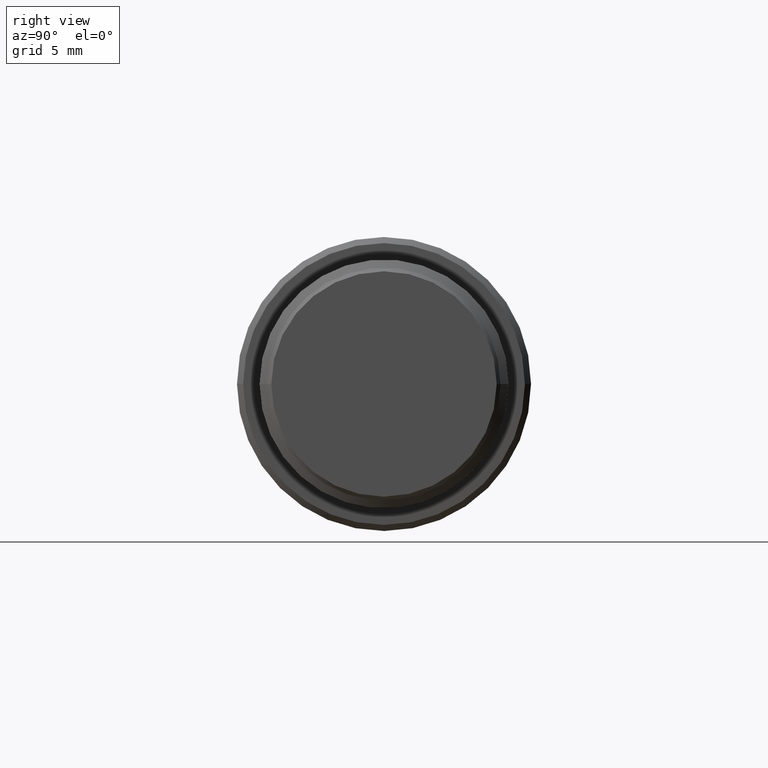
[diagram: clean part render]
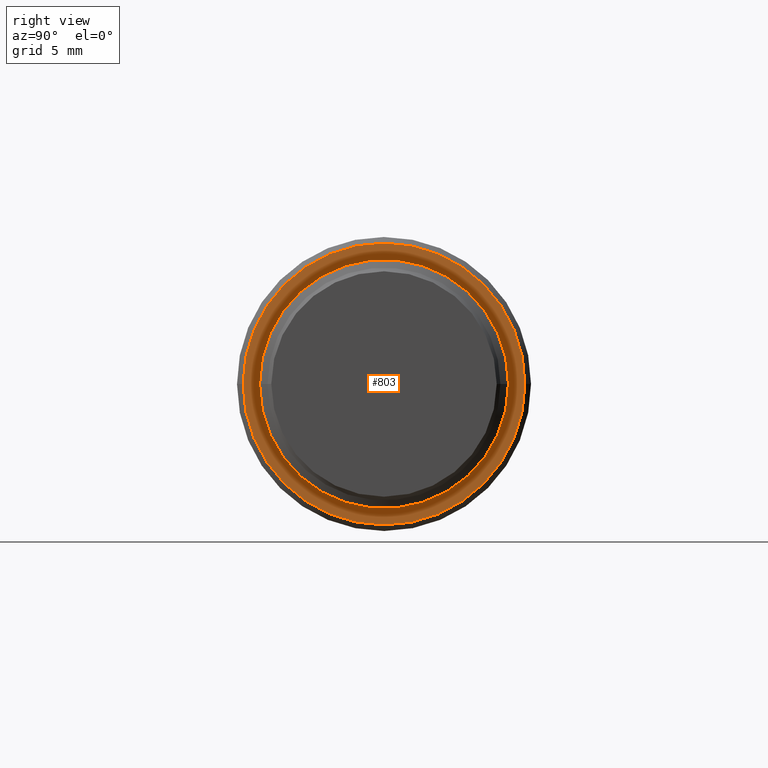
[diagram: same view with one face highlighted and labeled with its STEP entity id]
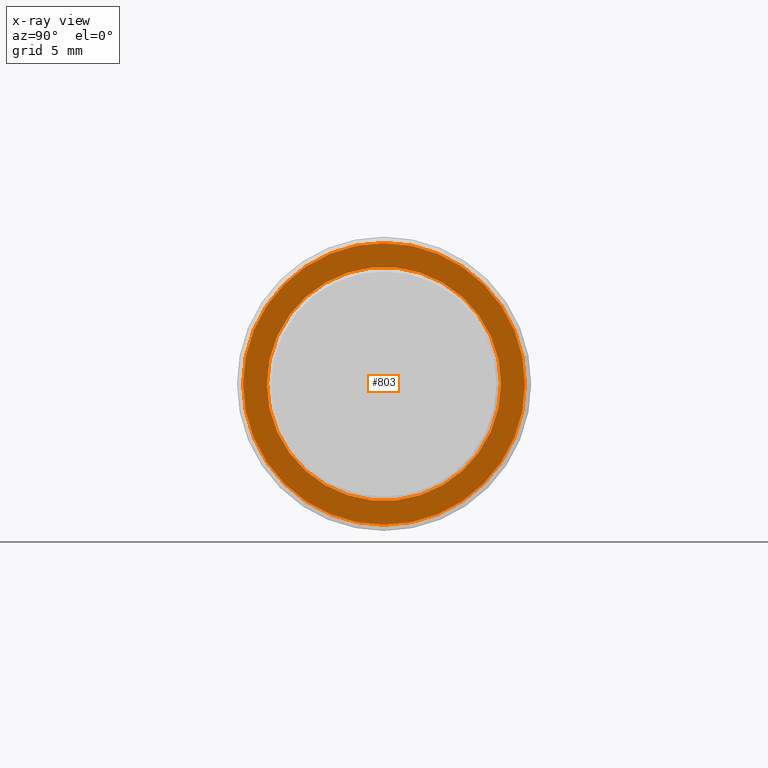
[diagram: x-ray of the same camera — body ghosted, the highlighted face saturated]
A machine part, right view. The second image highlights one B-rep face of the part: STEP entity #803.
The next image is the same camera in x-ray: the body ghosted, the highlighted face saturated — about 0% of this face is hidden behind the body in this view.
In plain terms, the highlighted planar face has unit normal (-1, 0, 0).
Its self-contained STEP definition (entity closure, byte-faithful):
#12 = EDGE_CURVE ( 'NONE', #1266, #399, #733, .T. ) ;
#100 = DIRECTION ( 'NONE',  ( 0.000000000000000000, 1.000000000000000000, 0.000000000000000000 ) ) ;
#183 = CIRCLE ( 'NONE', #898, 9.549999999999998934 ) ;
#192 = CARTESIAN_POINT ( 'NONE',  ( 45.00000000000000000, 0.000000000000000000, 0.000000000000000000 ) ) ;
#282 = CARTESIAN_POINT ( 'NONE',  ( 45.00000000000000000, -9.549999999999998934, 0.000000000000000000 ) ) ;
#307 = CARTESIAN_POINT ( 'NONE',  ( 45.00000000000000000, 10.52500000000000036, 0.000000000000000000 ) ) ;
#338 = CARTESIAN_POINT ( 'NONE',  ( 45.00000000000000000, -11.50000000000000000, -1.408343819019459923E-15 ) ) ;
#343 = AXIS2_PLACEMENT_3D ( 'NONE', #680, #602, #1202 ) ;
#352 = CARTESIAN_POINT ( 'NONE',  ( 45.00000000000000000, 0.000000000000000000, 0.000000000000000000 ) ) ;
#381 = DIRECTION ( 'NONE',  ( 0.000000000000000000, 1.000000000000000000, 0.000000000000000000 ) ) ;
#399 = VERTEX_POINT ( 'NONE', #282 ) ;
#408 = DIRECTION ( 'NONE',  ( 1.000000000000000000, 0.000000000000000000, 0.000000000000000000 ) ) ;
#414 = EDGE_CURVE ( 'NONE', #925, #1161, #470, .T. ) ;
#457 = DIRECTION ( 'NONE',  ( 1.000000000000000000, 0.000000000000000000, 0.000000000000000000 ) ) ;
#470 = CIRCLE ( 'NONE', #575, 11.50000000000000000 ) ;
#473 = AXIS2_PLACEMENT_3D ( 'NONE', #192, #651, #381 ) ;
#507 = FACE_OUTER_BOUND ( 'NONE', #779, .T. ) ;
#546 = EDGE_CURVE ( 'NONE', #399, #1266, #183, .T. ) ;
#575 = AXIS2_PLACEMENT_3D ( 'NONE', #352, #457, #1135 ) ;
#599 = FACE_BOUND ( 'NONE', #862, .T. ) ;
#602 = DIRECTION ( 'NONE',  ( 1.000000000000000000, 0.000000000000000000, 0.000000000000000000 ) ) ;
#610 = CARTESIAN_POINT ( 'NONE',  ( 45.00000000000000000, 9.549999999999998934, -1.169537693185719994E-15 ) ) ;
#651 = DIRECTION ( 'NONE',  ( 1.000000000000000000, 0.000000000000000000, 0.000000000000000000 ) ) ;
#679 = AXIS2_PLACEMENT_3D ( 'NONE', #307, #1076, #785 ) ;
#680 = CARTESIAN_POINT ( 'NONE',  ( 45.00000000000000000, 0.000000000000000000, 0.000000000000000000 ) ) ;
#733 = CIRCLE ( 'NONE', #343, 9.549999999999998934 ) ;
#779 = EDGE_LOOP ( 'NONE', ( #958, #1078 ) ) ;
#785 = DIRECTION ( 'NONE',  ( 0.000000000000000000, 0.000000000000000000, 1.000000000000000000 ) ) ;
#803 = ADVANCED_FACE ( 'NONE', ( #507, #599 ), #1088, .F. ) ;
#862 = EDGE_LOOP ( 'NONE', ( #884, #912 ) ) ;
#884 = ORIENTED_EDGE ( 'NONE', *, *, #12, .F. ) ;
#898 = AXIS2_PLACEMENT_3D ( 'NONE', #984, #408, #100 ) ;
#912 = ORIENTED_EDGE ( 'NONE', *, *, #546, .F. ) ;
#925 = VERTEX_POINT ( 'NONE', #338 ) ;
#958 = ORIENTED_EDGE ( 'NONE', *, *, #1082, .T. ) ;
#984 = CARTESIAN_POINT ( 'NONE',  ( 45.00000000000000000, 0.000000000000000000, 0.000000000000000000 ) ) ;
#1076 = DIRECTION ( 'NONE',  ( -1.000000000000000000, 0.000000000000000000, 0.000000000000000000 ) ) ;
#1078 = ORIENTED_EDGE ( 'NONE', *, *, #414, .T. ) ;
#1082 = EDGE_CURVE ( 'NONE', #1161, #925, #1192, .T. ) ;
#1088 = PLANE ( 'NONE',  #679 ) ;
#1135 = DIRECTION ( 'NONE',  ( 0.000000000000000000, 1.000000000000000000, 0.000000000000000000 ) ) ;
#1161 = VERTEX_POINT ( 'NONE', #1250 ) ;
#1192 = CIRCLE ( 'NONE', #473, 11.50000000000000000 ) ;
#1202 = DIRECTION ( 'NONE',  ( 0.000000000000000000, 1.000000000000000000, 0.000000000000000000 ) ) ;
#1250 = CARTESIAN_POINT ( 'NONE',  ( 45.00000000000000000, 11.50000000000000000, 0.000000000000000000 ) ) ;
#1266 = VERTEX_POINT ( 'NONE', #610 ) ;